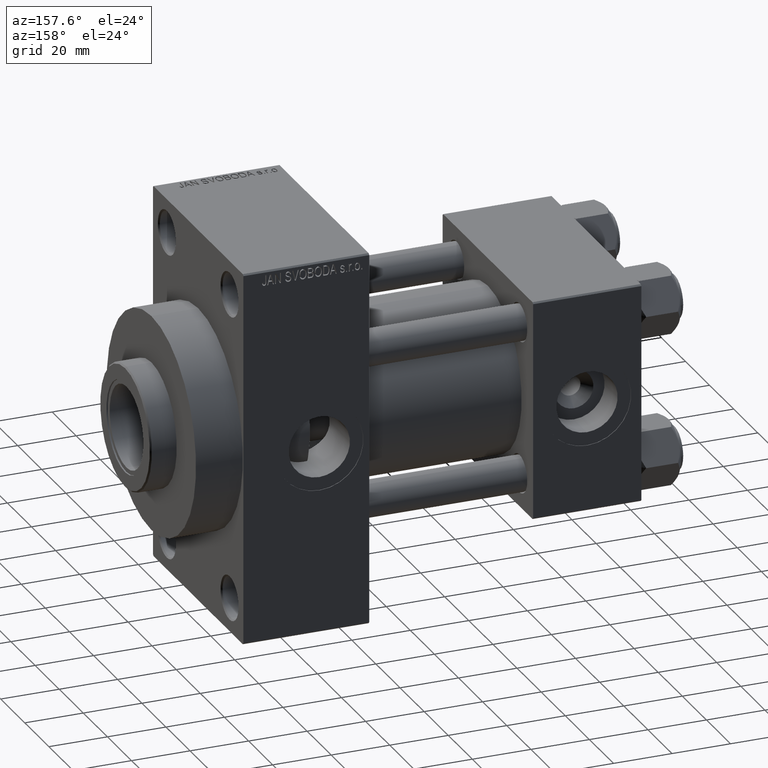
[diagram: clean part render]
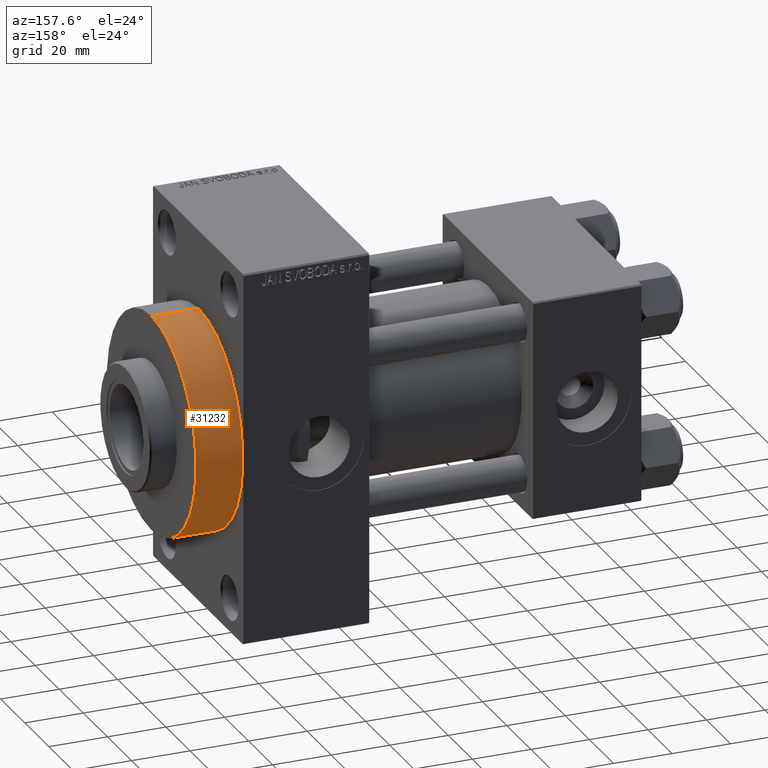
[diagram: same view with one face highlighted and labeled with its STEP entity id]
A machine part, auxiliary view. The second image highlights one B-rep face of the part: STEP entity #31232.
In plain terms, the highlighted cylindrical surface (partial cylindrical patch) has radius 37 mm, axis along (-1, -0, -0).
Its self-contained STEP definition (entity closure, byte-faithful):
#452 = DIRECTION ( 'NONE',  ( -1.000000000000000000, -0.000000000000000000, -0.000000000000000000 ) ) ;
#1056 = ORIENTED_EDGE ( 'NONE', *, *, #6614, .F. ) ;
#1849 = CARTESIAN_POINT ( 'NONE',  ( 136.0000000000000000, 0.000000000000000000, 0.000000000000000000 ) ) ;
#2540 = DIRECTION ( 'NONE',  ( 1.000000000000000000, 0.000000000000000000, 0.000000000000000000 ) ) ;
#2936 = DIRECTION ( 'NONE',  ( 1.000000000000000000, 0.000000000000000000, 0.000000000000000000 ) ) ;
#3357 = VERTEX_POINT ( 'NONE', #17353 ) ;
#3593 = CARTESIAN_POINT ( 'NONE',  ( 152.0000000000000284, 0.000000000000000000, 0.000000000000000000 ) ) ;
#6161 = CIRCLE ( 'NONE', #9953, 37.00000000000000000 ) ;
#6614 = EDGE_CURVE ( 'NONE', #3357, #25294, #6161, .T. ) ;
#6925 = CYLINDRICAL_SURFACE ( 'NONE', #31391, 37.00000000000000000 ) ;
#7359 = LINE ( 'NONE', #43899, #24095 ) ;
#8989 = EDGE_CURVE ( 'NONE', #18060, #34027, #24519, .T. ) ;
#9953 = AXIS2_PLACEMENT_3D ( 'NONE', #28474, #2936, #35878 ) ;
#10737 = FACE_OUTER_BOUND ( 'NONE', #41678, .T. ) ;
#10977 = DIRECTION ( 'NONE',  ( -1.000000000000000000, -0.000000000000000000, -0.000000000000000000 ) ) ;
#12584 = DIRECTION ( 'NONE',  ( 0.000000000000000000, 0.000000000000000000, -1.000000000000000000 ) ) ;
#14317 = DIRECTION ( 'NONE',  ( 0.000000000000000000, 0.000000000000000000, 1.000000000000000000 ) ) ;
#15403 = CARTESIAN_POINT ( 'NONE',  ( 136.0000000000000000, 4.531193156845206793E-15, -37.00000000000000000 ) ) ;
#16886 = AXIS2_PLACEMENT_3D ( 'NONE', #1849, #2540, #12584 ) ;
#17353 = CARTESIAN_POINT ( 'NONE',  ( 152.0000000000000284, 4.531193156845206793E-15, -37.00000000000000000 ) ) ;
#17928 = LINE ( 'NONE', #32488, #24510 ) ;
#18060 = VERTEX_POINT ( 'NONE', #15403 ) ;
#19991 = ORIENTED_EDGE ( 'NONE', *, *, #45116, .F. ) ;
#24095 = VECTOR ( 'NONE', #452, 1000.000000000000000 ) ;
#24510 = VECTOR ( 'NONE', #47069, 1000.000000000000000 ) ;
#24519 = CIRCLE ( 'NONE', #16886, 37.00000000000000000 ) ;
#25294 = VERTEX_POINT ( 'NONE', #28707 ) ;
#27525 = EDGE_CURVE ( 'NONE', #3357, #18060, #17928, .T. ) ;
#27960 = CARTESIAN_POINT ( 'NONE',  ( 136.0000000000000000, 0.000000000000000000, 37.00000000000000000 ) ) ;
#28474 = CARTESIAN_POINT ( 'NONE',  ( 152.0000000000000284, 0.000000000000000000, 0.000000000000000000 ) ) ;
#28707 = CARTESIAN_POINT ( 'NONE',  ( 152.0000000000000284, 0.000000000000000000, 37.00000000000000000 ) ) ;
#31232 = ADVANCED_FACE ( 'NONE', ( #10737 ), #6925, .T. ) ;
#31391 = AXIS2_PLACEMENT_3D ( 'NONE', #3593, #10977, #14317 ) ;
#32488 = CARTESIAN_POINT ( 'NONE',  ( 152.0000000000000284, 4.531193156845206793E-15, -37.00000000000000000 ) ) ;
#34027 = VERTEX_POINT ( 'NONE', #27960 ) ;
#35878 = DIRECTION ( 'NONE',  ( 0.000000000000000000, 0.000000000000000000, -1.000000000000000000 ) ) ;
#37730 = ORIENTED_EDGE ( 'NONE', *, *, #27525, .T. ) ;
#40479 = ORIENTED_EDGE ( 'NONE', *, *, #8989, .T. ) ;
#41678 = EDGE_LOOP ( 'NONE', ( #1056, #37730, #40479, #19991 ) ) ;
#43899 = CARTESIAN_POINT ( 'NONE',  ( 152.0000000000000284, 0.000000000000000000, 37.00000000000000000 ) ) ;
#45116 = EDGE_CURVE ( 'NONE', #25294, #34027, #7359, .T. ) ;
#47069 = DIRECTION ( 'NONE',  ( -1.000000000000000000, -0.000000000000000000, -0.000000000000000000 ) ) ;